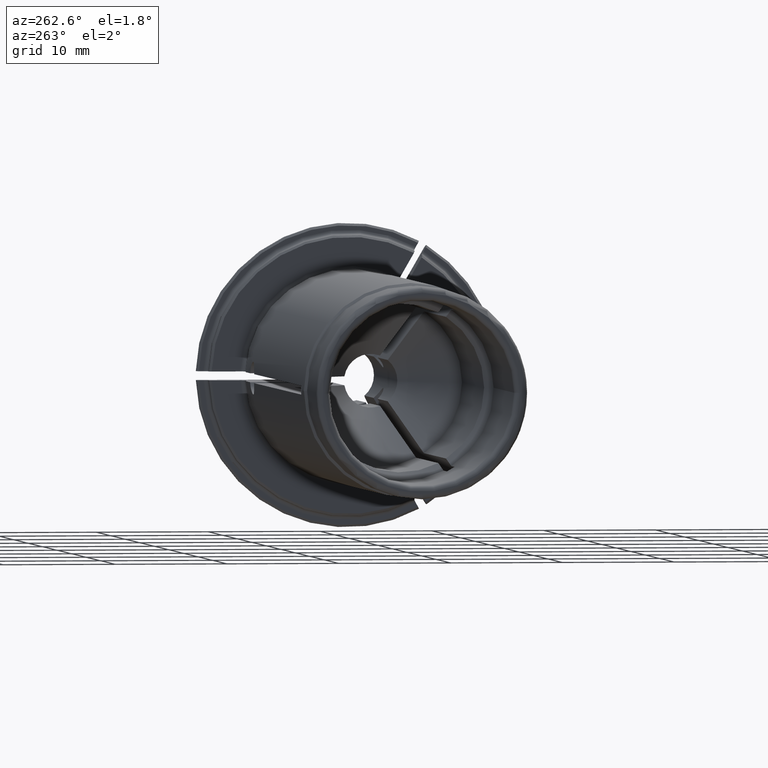
[diagram: clean part render]
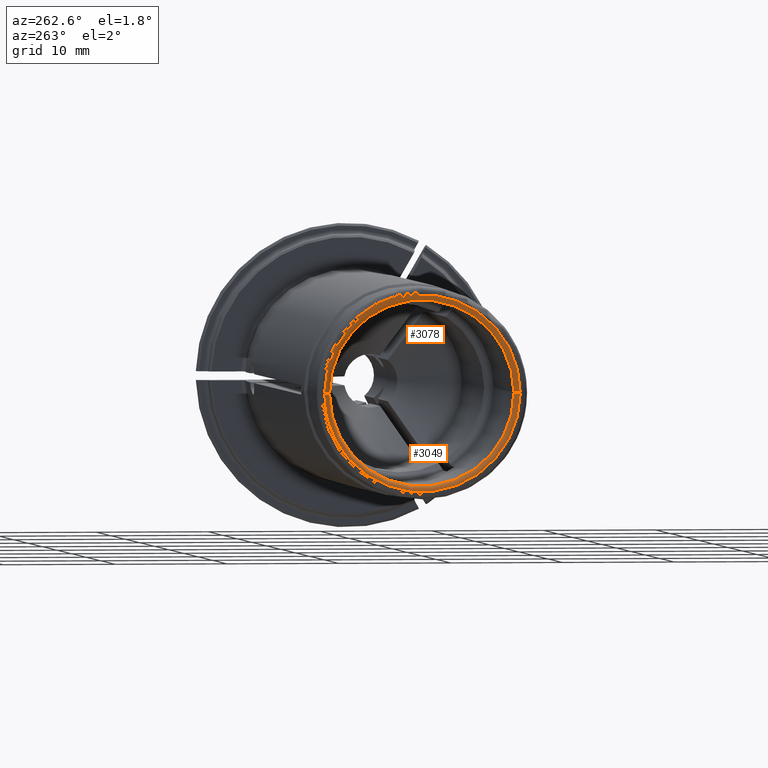
[diagram: same view with one multi-face feature highlighted, each face labeled with its STEP entity id]
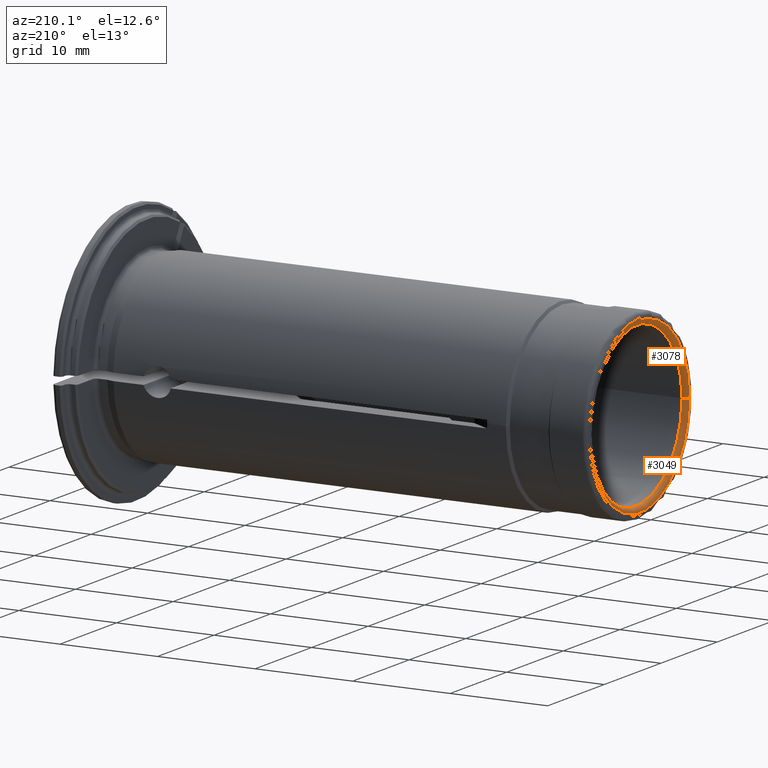
[diagram: same view with one multi-face feature highlighted, each face labeled with its STEP entity id]
A machine part, auxiliary view. The highlighted faces form ONE feature: a constant-radius fillet chain: 2 tangent blend faces with common blend radius 0.5 mm. The faces share edges in the B-rep.
A second angle (auxiliary view) of the same feature is appended — it is thin or edge-on in the first view.
Their STEP definitions:
[1] entity #3049 (Torus):
#1380=CARTESIAN_POINT('',(-5.E1,0.E0,0.E0));
#1381=DIRECTION('',(1.E0,0.E0,0.E0));
#1382=DIRECTION('',(0.E0,-1.E0,0.E0));
#1383=AXIS2_PLACEMENT_3D('',#1380,#1381,#1382);
#1412=CARTESIAN_POINT('',(-5.E1,-8.75E0,2.220446049250E-14));
#1413=DIRECTION('',(0.E0,0.E0,-1.E0));
#1414=DIRECTION('',(-1.E0,1.207922650792E-13,0.E0));
#1415=AXIS2_PLACEMENT_3D('',#1412,#1413,#1414);
#1422=CARTESIAN_POINT('',(-5.05E1,0.E0,0.E0));
#1423=DIRECTION('',(1.E0,0.E0,0.E0));
#1424=DIRECTION('',(0.E0,-1.E0,0.E0));
#1425=AXIS2_PLACEMENT_3D('',#1422,#1423,#1424);
#1437=CARTESIAN_POINT('',(-5.E1,8.75E0,-2.428612866368E-14));
#1438=DIRECTION('',(0.E0,0.E0,1.E0));
#1439=DIRECTION('',(-1.E0,-1.243449787580E-13,0.E0));
#1440=AXIS2_PLACEMENT_3D('',#1437,#1438,#1439);
#1883=CARTESIAN_POINT('',(-5.05E1,8.75E0,0.E0));
#1884=CARTESIAN_POINT('',(-5.05E1,-8.75E0,0.E0));
#1885=VERTEX_POINT('',#1883);
#1886=VERTEX_POINT('',#1884);
#1887=CARTESIAN_POINT('',(-5.E1,8.25E0,0.E0));
#1888=CARTESIAN_POINT('',(-5.E1,-8.25E0,0.E0));
#1889=VERTEX_POINT('',#1887);
#1890=VERTEX_POINT('',#1888);
#3035=CARTESIAN_POINT('',(-5.E1,0.E0,0.E0));
#3036=DIRECTION('',(-1.E0,0.E0,0.E0));
#3037=DIRECTION('',(0.E0,-9.998522983328E-1,1.718666688422E-2));
#3038=AXIS2_PLACEMENT_3D('',#3035,#3036,#3037);
#3039=TOROIDAL_SURFACE('',#3038,8.75E0,5.E-1);
#3041=ORIENTED_EDGE('',*,*,#3040,.T.);
#3043=ORIENTED_EDGE('',*,*,#3042,.T.);
#3044=ORIENTED_EDGE('',*,*,#3021,.F.);
#3046=ORIENTED_EDGE('',*,*,#3045,.F.);
#3047=EDGE_LOOP('',(#3041,#3043,#3044,#3046));
#3048=FACE_OUTER_BOUND('',#3047,.F.);
#3049=ADVANCED_FACE('',(#3048),#3039,.T.);
#1384=CIRCLE('',#1383,8.25E0);
#1416=CIRCLE('',#1415,5.E-1);
#1426=CIRCLE('',#1425,8.75E0);
#1441=CIRCLE('',#1440,5.E-1);
#3021=EDGE_CURVE('',#1890,#1889,#1384,.T.);
#3040=EDGE_CURVE('',#1886,#1885,#1426,.T.);
#3042=EDGE_CURVE('',#1885,#1889,#1441,.T.);
#3045=EDGE_CURVE('',#1886,#1890,#1416,.T.);
[2] entity #3078 (Torus):
#1346=CARTESIAN_POINT('',(-5.E1,0.E0,0.E0));
#1347=DIRECTION('',(1.E0,0.E0,0.E0));
#1348=DIRECTION('',(0.E0,1.E0,0.E0));
#1349=AXIS2_PLACEMENT_3D('',#1346,#1347,#1348);
#1412=CARTESIAN_POINT('',(-5.E1,-8.75E0,2.220446049250E-14));
#1413=DIRECTION('',(0.E0,0.E0,-1.E0));
#1414=DIRECTION('',(-1.E0,1.207922650792E-13,0.E0));
#1415=AXIS2_PLACEMENT_3D('',#1412,#1413,#1414);
#1417=CARTESIAN_POINT('',(-5.05E1,0.E0,0.E0));
#1418=DIRECTION('',(1.E0,0.E0,0.E0));
#1419=DIRECTION('',(0.E0,1.E0,0.E0));
#1420=AXIS2_PLACEMENT_3D('',#1417,#1418,#1419);
#1437=CARTESIAN_POINT('',(-5.E1,8.75E0,-2.428612866368E-14));
#1438=DIRECTION('',(0.E0,0.E0,1.E0));
#1439=DIRECTION('',(-1.E0,-1.243449787580E-13,0.E0));
#1440=AXIS2_PLACEMENT_3D('',#1437,#1438,#1439);
#1883=CARTESIAN_POINT('',(-5.05E1,8.75E0,0.E0));
#1884=CARTESIAN_POINT('',(-5.05E1,-8.75E0,0.E0));
#1885=VERTEX_POINT('',#1883);
#1886=VERTEX_POINT('',#1884);
#1887=CARTESIAN_POINT('',(-5.E1,8.25E0,0.E0));
#1888=CARTESIAN_POINT('',(-5.E1,-8.25E0,0.E0));
#1889=VERTEX_POINT('',#1887);
#1890=VERTEX_POINT('',#1888);
#3067=CARTESIAN_POINT('',(-5.E1,0.E0,0.E0));
#3068=DIRECTION('',(-1.E0,0.E0,0.E0));
#3069=DIRECTION('',(0.E0,9.998522983328E-1,-1.718666688422E-2));
#3070=AXIS2_PLACEMENT_3D('',#3067,#3068,#3069);
#3071=TOROIDAL_SURFACE('',#3070,8.75E0,5.E-1);
#3072=ORIENTED_EDGE('',*,*,#3061,.T.);
#3073=ORIENTED_EDGE('',*,*,#3045,.T.);
#3074=ORIENTED_EDGE('',*,*,#3001,.F.);
#3075=ORIENTED_EDGE('',*,*,#3042,.F.);
#3076=EDGE_LOOP('',(#3072,#3073,#3074,#3075));
#3077=FACE_OUTER_BOUND('',#3076,.F.);
#3078=ADVANCED_FACE('',(#3077),#3071,.T.);
#1350=CIRCLE('',#1349,8.25E0);
#1416=CIRCLE('',#1415,5.E-1);
#1421=CIRCLE('',#1420,8.75E0);
#1441=CIRCLE('',#1440,5.E-1);
#3001=EDGE_CURVE('',#1889,#1890,#1350,.T.);
#3042=EDGE_CURVE('',#1885,#1889,#1441,.T.);
#3045=EDGE_CURVE('',#1886,#1890,#1416,.T.);
#3061=EDGE_CURVE('',#1885,#1886,#1421,.T.);